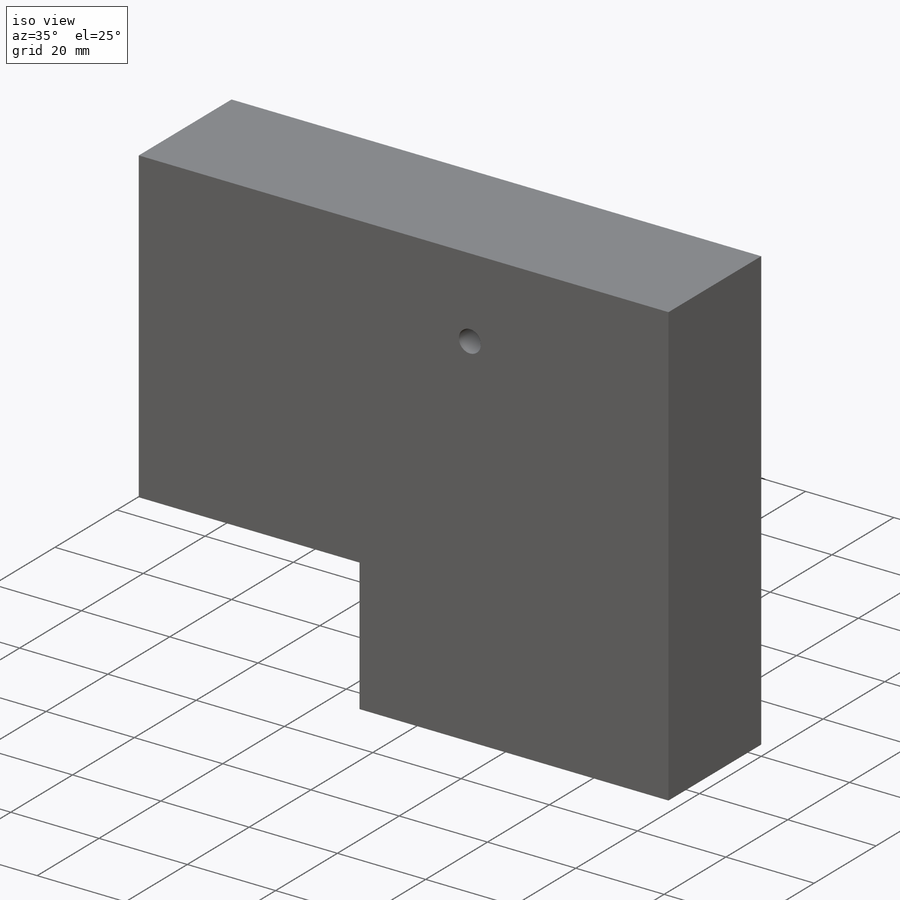
[diagram: iso view]
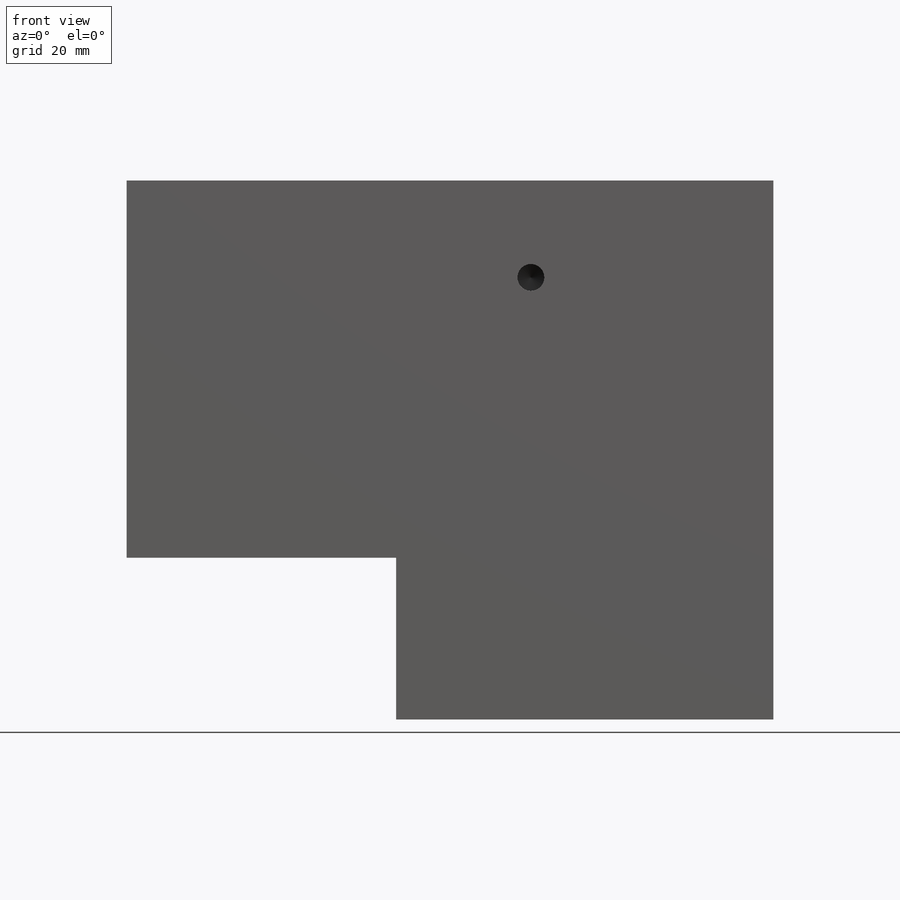
[diagram: front view]
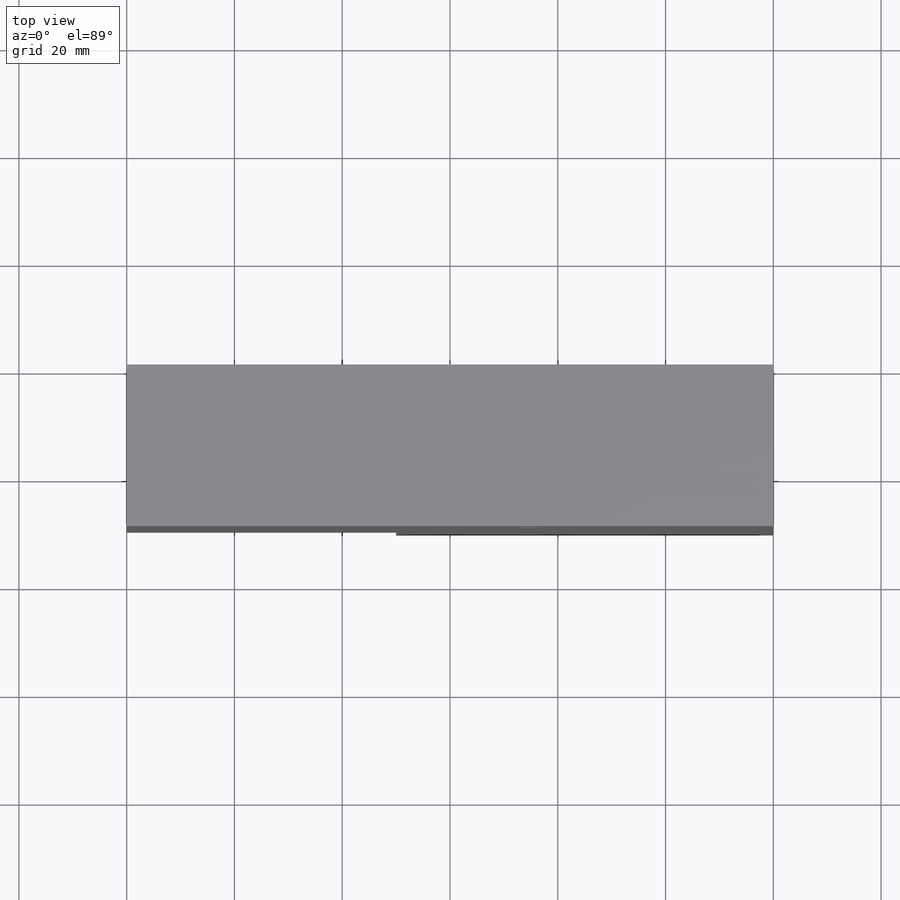
[diagram: top view]
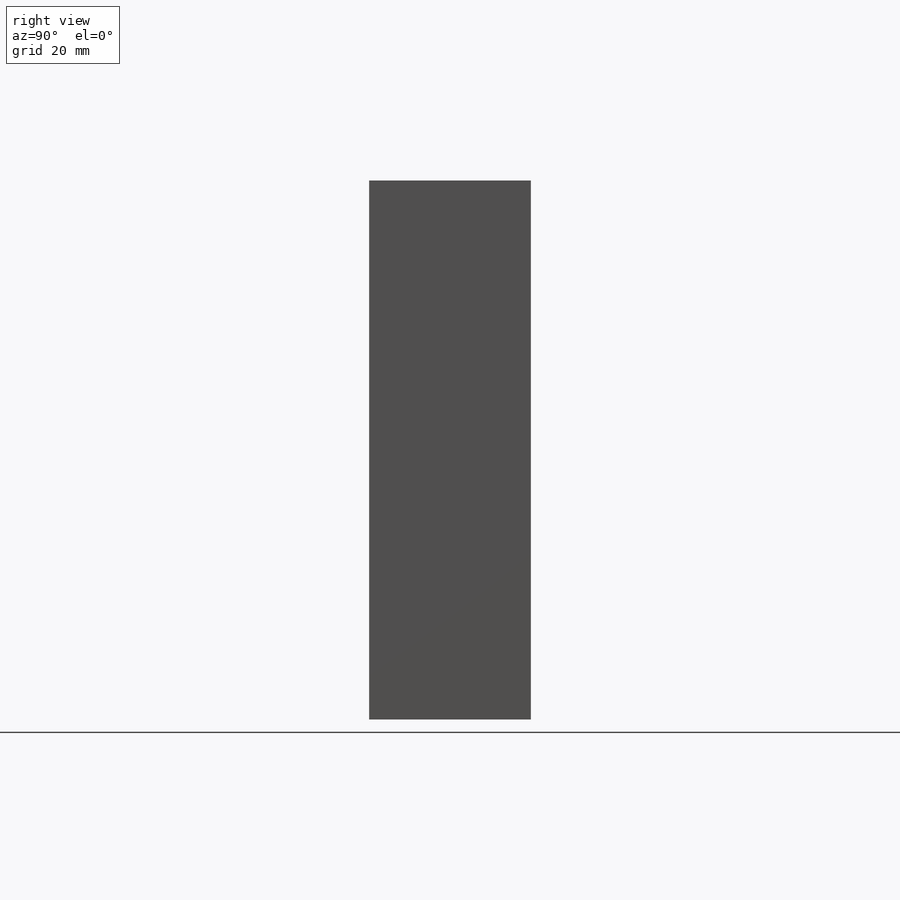
[diagram: right view]
SOLIDWORKS PART (.sldprt)
format: sldprt  version: not decoded by parser v0  size: 194,560 bytes
history: native  units: mm
features: plane x5, sketch x5, material x1, extrude x1, hole x1, thread x1 (+9 scaffold rows collapsed)
feature tree (23):
  scaffold x9  (default folders/planes/origin — collapsed)
  material  "Material <nicht festgelegt>"
  plane  "Ebene vorne"
  plane  "Ebene oben"
  plane  "Ebene rechts"
  sketch  "Skizze1"  dims[D1=100.0mm D2=120.0mm D3=50.0mm D4=70.0mm D5=0.0mm D6=0.0mm]
  extrude  "Aufsatz-Linear austragen1"  Depth=30mm
  sketch  "Skizze2"  dims[D3=12.0mm D1=20.0mm D2=15.0mm]
  plane  "Ebene1"  Offset=230mm
  sketch  "Skizze3"  dims[D1=250.0mm D2=160.0mm D3=125.0mm D4=10.0mm]
  plane  "Ebene2"  Offset=20mm
  hole  "M6x1.0 Gewindebohrung1"  Diameter=5mm Depth=9mm
  sketch  "Skizze8"  dims[D1=18.0mm D2=45.0mm]
  sketch  "Skizze6"  dims[hole-wizard template sketch: 46 standard entries collapsed; hole parameters kept: c15.Bohrerdurchmesser=5.0mm c15.Bohrungstiefe=9.0mm c15.D3=~14.816244mm c15.Spitzenwinkel=118.0deg]
  thread  "Bohrungsgewinde1"  Diameter=7mm  [1 undecoded]
decode coverage: 8 of 8 modeling features carry decoded parameters
note: ~ marks probable driven/reference dimensions
note: 1 parameter value undecoded
note: suppression state not decoded; provenance and decode notes live in map.json
